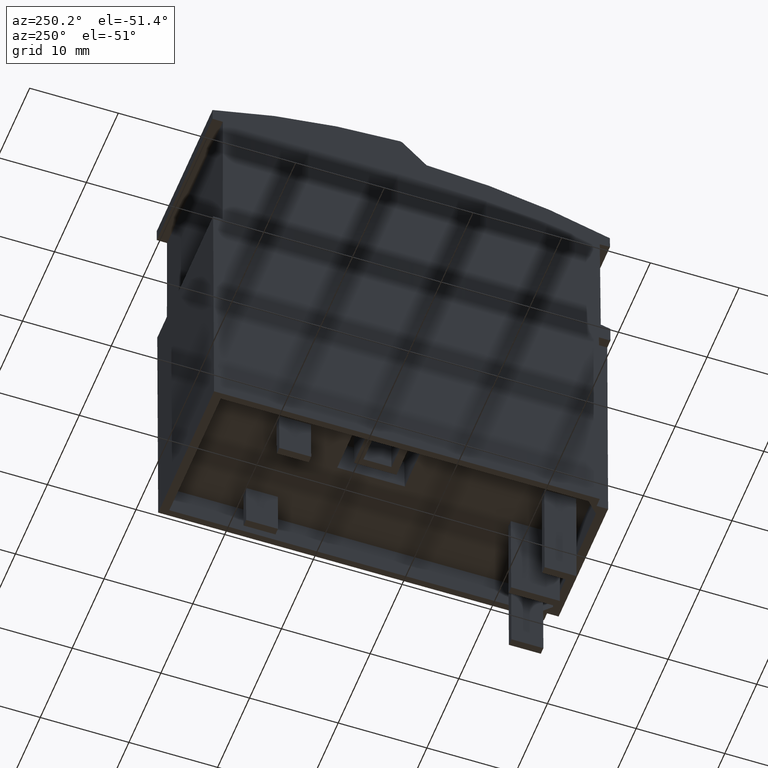
[diagram: clean part render]
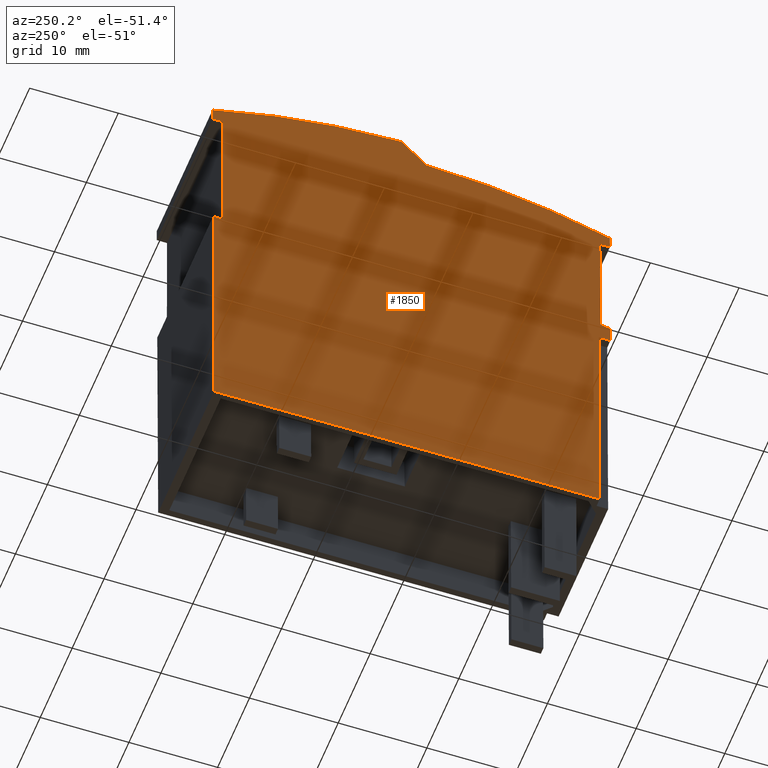
[diagram: same view with one face highlighted and labeled with its STEP entity id]
A machine part, auxiliary view. The second image highlights one B-rep face of the part: STEP entity #1850.
In plain terms, the highlighted planar face has unit normal (-1, -0, -0).
Its self-contained STEP definition (entity closure, byte-faithful):
#60=CARTESIAN_POINT('',(55.383675636842,134.904281368354,
18.5305241959885));
#70=DIRECTION('',(-0.709570736536522,-0.704634209963594,
-7.30202951804649E-21));
#80=VECTOR('',#70,1.);
#90=LINE('',#60,#80);
#100=CARTESIAN_POINT('',(-13.6695956461832,66.3314178742696,
18.5305241959885));
#110=VERTEX_POINT('',#100);
#120=CARTESIAN_POINT('',(-16.3427578101605,63.6768530613058,
18.5305241959885));
#130=VERTEX_POINT('',#120);
#140=EDGE_CURVE('',#110,#130,#90,.T.);
#480=CARTESIAN_POINT('',(6.52498688580021,38.8592423836228,
18.5305241959885));
#490=DIRECTION('',(1.03086371928786E-20,-1.79919842279765E-23,-1.));
#500=DIRECTION('',(-0.99999390765779,0.00349065141522352,
-1.03086371928783E-20));
#510=AXIS2_PLACEMENT_3D('',#480,#490,#500);
#520=PLANE('',#510);
#530=CARTESIAN_POINT('',(-36.5209807869904,-21.6491464728187,
18.5305241959885));
#540=DIRECTION('',(-0.00801565959788845,-0.999967874084568,
-8.67426377108841E-19));
#550=VECTOR('',#540,1.);
#560=LINE('',#530,#550);
#570=CARTESIAN_POINT('',(-35.8783688208544,58.5178458739706,
18.5305241959885));
#580=VERTEX_POINT('',#570);
#590=CARTESIAN_POINT('',(-35.9873958917737,44.9165237377804,
18.5305241959885));
#600=VERTEX_POINT('',#590);
#610=EDGE_CURVE('',#580,#600,#560,.T.);
#620=ORIENTED_EDGE('',*,*,#610,.F.);
#630=CARTESIAN_POINT('',(55.1520752623348,68.5559308833072,
18.5305241959885));
#640=DIRECTION('',(0.967969400400652,0.251068197683423,
2.08176791045364E-16));
#650=VECTOR('',#640,1.);
#660=LINE('',#630,#650);
#670=CARTESIAN_POINT('',(-37.0731724928546,44.6348991593513,
18.5305241959885));
#680=VERTEX_POINT('',#670);
#690=EDGE_CURVE('',#680,#600,#660,.T.);
#700=ORIENTED_EDGE('',*,*,#690,.T.);
#710=CARTESIAN_POINT('',(-37.3045388526735,-21.6464113280843,
18.5305241959885));
#720=DIRECTION('',(0.00349065141522352,0.99999390765779,
1.79919843916959E-23));
#730=VECTOR('',#720,1.);
#740=LINE('',#710,#730);
#750=CARTESIAN_POINT('',(-37.0800680664684,42.6594708557607,
18.5305241959885));
#760=VERTEX_POINT('',#750);
#770=EDGE_CURVE('',#760,#680,#740,.T.);
#780=ORIENTED_EDGE('',*,*,#770,.T.);
#790=CARTESIAN_POINT('',(55.0605564820744,42.3378380947839,
18.5305241959885));
#800=DIRECTION('',(0.99999390765779,-0.00349065141522352,
2.44939668466664E-16));
#810=VECTOR('',#800,1.);
#820=LINE('',#790,#810);
#830=CARTESIAN_POINT('',(-35.7800759865133,42.6549330089209,
18.5305241959885));
#840=VERTEX_POINT('',#830);
#850=EDGE_CURVE('',#760,#840,#820,.T.);
#860=ORIENTED_EDGE('',*,*,#850,.F.);
#870=CARTESIAN_POINT('',(-36.0045467727183,-21.6509491749241,
18.5305241959885));
#880=DIRECTION('',(0.00349065141522352,0.99999390765779,
1.79919843916959E-23));
#890=VECTOR('',#880,1.);
#900=LINE('',#870,#890);
#910=CARTESIAN_POINT('',(-35.8758943678612,15.2051002437155,
18.5305241959885));
#920=VERTEX_POINT('',#910);
#930=EDGE_CURVE('',#920,#840,#900,.T.);
#940=ORIENTED_EDGE('',*,*,#930,.T.);
#950=CARTESIAN_POINT('',(54.9647381007265,14.8880053295785,
18.5305241959885));
#960=DIRECTION('',(-0.99999390765779,0.00349065141522352,
-2.44939668466664E-16));
#970=VECTOR('',#960,1.);
#980=LINE('',#950,#970);
#990=CARTESIAN_POINT('',(7.62384061525408,15.0532569071533,
18.5305241959885));
#1000=VERTEX_POINT('',#990);
#1010=EDGE_CURVE('',#1000,#920,#980,.T.);
#1020=ORIENTED_EDGE('',*,*,#1010,.T.);
#1030=CARTESIAN_POINT('',(7.49518821039688,-21.8027925114864,
18.5305241959885));
#1040=DIRECTION('',(-0.00349065141522352,-0.99999390765779,
-1.79919843916959E-23));
#1050=VECTOR('',#1040,1.);
#1060=LINE('',#1030,#1050);
#1070=CARTESIAN_POINT('',(7.72755084726485,44.763929167421,
18.5305241959885));
#1080=VERTEX_POINT('',#1070);
#1090=EDGE_CURVE('',#1080,#1000,#1060,.T.);
#1100=ORIENTED_EDGE('',*,*,#1090,.T.);
#1110=CARTESIAN_POINT('',(55.0684483327373,44.5986775898463,
18.5305241959885));
#1120=DIRECTION('',(-0.99999390765779,0.00349065141522352,
-2.44939668466664E-16));
#1130=VECTOR('',#1120,1.);
#1140=LINE('',#1110,#1130);
#1150=CARTESIAN_POINT('',(6.6424396179536,44.7677169355457,
18.5305241959885));
#1160=VERTEX_POINT('',#1150);
#1170=EDGE_CURVE('',#1080,#1160,#1140,.T.);
#1180=ORIENTED_EDGE('',*,*,#1170,.F.);
#1190=CARTESIAN_POINT('',(6.71129923943435,-21.80005621167,
18.5305241959885));
#1200=DIRECTION('',(-0.00103442824333508,0.999999464978962,
-8.67390393508468E-19));
#1210=VECTOR('',#1200,1.);
#1220=LINE('',#1190,#1210);
#1230=CARTESIAN_POINT('',(6.62531881464075,61.3186901549667,
18.5305241959885));
#1240=VERTEX_POINT('',#1230);
#1250=EDGE_CURVE('',#1160,#1240,#1220,.T.);
#1260=ORIENTED_EDGE('',*,*,#1250,.F.);
#1270=CARTESIAN_POINT('',(55.1299430061852,62.2155322929907,
18.5305241959885));
#1280=DIRECTION('',(-0.999829106954706,-0.0184866677947821,
-1.03065429066405E-20));
#1290=VECTOR('',#1280,1.);
#1300=LINE('',#1270,#1290);
#1310=CARTESIAN_POINT('',(7.78524750858229,61.3401370365202,
18.5305241959885));
#1320=VERTEX_POINT('',#1310);
#1330=EDGE_CURVE('',#1320,#1240,#1300,.T.);
#1340=ORIENTED_EDGE('',*,*,#1330,.T.);
#1350=CARTESIAN_POINT('',(7.49502275775721,-21.8027919339454,
18.5305241959885));
#1360=DIRECTION('',(0.00349065141522352,0.99999390765779,
1.79919843916959E-23));
#1370=VECTOR('',#1360,1.);
#1380=LINE('',#1350,#1370);
#1390=CARTESIAN_POINT('',(7.79045116874598,62.8308698087791,
18.5305241959885));
#1400=VERTEX_POINT('',#1390);
#1410=EDGE_CURVE('',#1320,#1400,#1380,.T.);
#1420=ORIENTED_EDGE('',*,*,#1410,.F.);
#1430=CARTESIAN_POINT('',(-14.8475321068877,-5.30694431239836,
18.5305241959885));
#1440=DIRECTION('',(1.03086371928786E-20,-1.79919842279765E-23,-1.));
#1450=DIRECTION('',(-0.99999390765779,0.00349065141522352,
-1.03086371928783E-20));
#1460=AXIS2_PLACEMENT_3D('',#1430,#1440,#1450);
#1470=CIRCLE('',#1460,71.8);
#1480=CARTESIAN_POINT('',(-13.3065474502779,66.476517336425,
18.5305241959885));
#1490=VERTEX_POINT('',#1480);
#1500=EDGE_CURVE('',#1490,#1400,#1470,.T.);
#1510=ORIENTED_EDGE('',*,*,#1500,.T.);
#1520=CARTESIAN_POINT('',(-13.3172785412014,65.9766325060014,
18.5305241959885));
#1530=DIRECTION('',(1.03086371928786E-20,-1.79919842279765E-23,-1.));
#1540=DIRECTION('',(-0.99999390765779,0.00349065141522352,
-1.03086371928783E-20));
#1550=AXIS2_PLACEMENT_3D('',#1520,#1530,#1540);
#1560=CIRCLE('',#1550,0.5);
#1570=EDGE_CURVE('',#110,#1490,#1560,.T.);
#1580=ORIENTED_EDGE('',*,*,#1570,.T.);
#1590=ORIENTED_EDGE('',*,*,#140,.F.);
#1600=CARTESIAN_POINT('',(-14.8475321068877,-5.30694431239836,
18.5305241959885));
#1610=DIRECTION('',(1.03086371928786E-20,-1.79919842279765E-23,-1.));
#1620=DIRECTION('',(-0.99999390765779,0.00349065141522352,
-1.03086371928783E-20));
#1630=AXIS2_PLACEMENT_3D('',#1600,#1610,#1620);
#1640=CIRCLE('',#1630,69.);
#1650=CARTESIAN_POINT('',(-37.0195857677472,60.0337018158729,
18.5305241959885));
#1660=VERTEX_POINT('',#1650);
#1670=EDGE_CURVE('',#1660,#130,#1640,.T.);
#1680=ORIENTED_EDGE('',*,*,#1670,.T.);
#1690=CARTESIAN_POINT('',(-37.3047043053125,-21.6464107505433,
18.5305241959885));
#1700=DIRECTION('',(-0.00349065141522352,-0.99999390765779,
-1.79919843916959E-23));
#1710=VECTOR('',#1700,1.);
#1720=LINE('',#1690,#1710);
#1730=CARTESIAN_POINT('',(-37.0247751824324,58.5470500560235,
18.5305241959885));
#1740=VERTEX_POINT('',#1730);
#1750=EDGE_CURVE('',#1660,#1740,#1720,.T.);
#1760=ORIENTED_EDGE('',*,*,#1750,.F.);
#1770=CARTESIAN_POINT('',(55.1089447007496,56.199985333728,
18.5305241959885));
#1780=DIRECTION('',(-0.999675681584727,0.0254662845368572,
-1.03057521009903E-20));
#1790=VECTOR('',#1780,1.);
#1800=LINE('',#1770,#1790);
#1810=EDGE_CURVE('',#580,#1740,#1800,.T.);
#1820=ORIENTED_EDGE('',*,*,#1810,.T.);
#1830=EDGE_LOOP('',(#1820,#1760,#1680,#1590,#1580,#1510,#1420,#1340,
#1260,#1180,#1100,#1020,#940,#860,#780,#700,#620));
#1840=FACE_OUTER_BOUND('',#1830,.T.);
#1850=ADVANCED_FACE('',(#1840),#520,.T.);